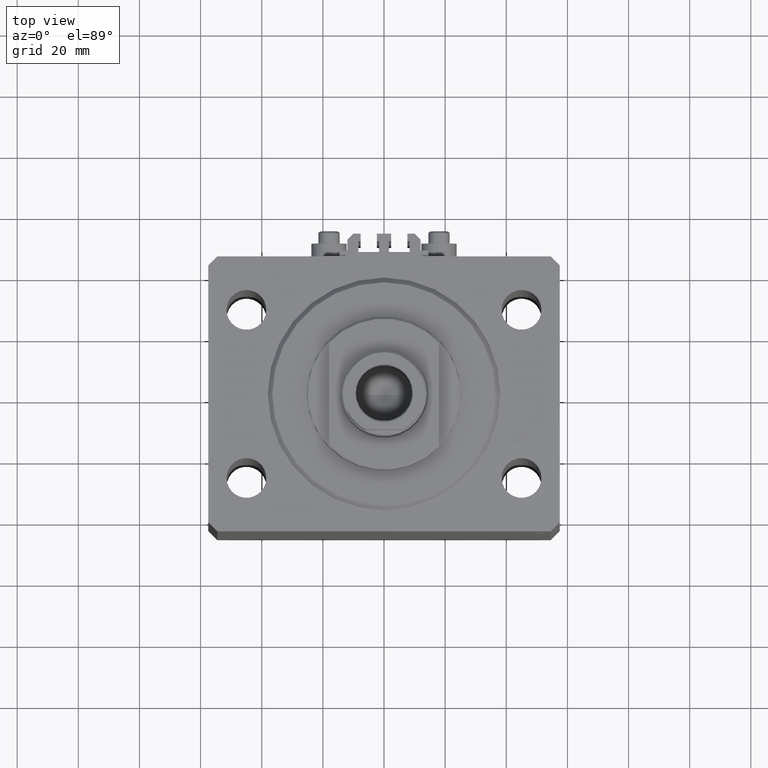
[diagram: clean part render]
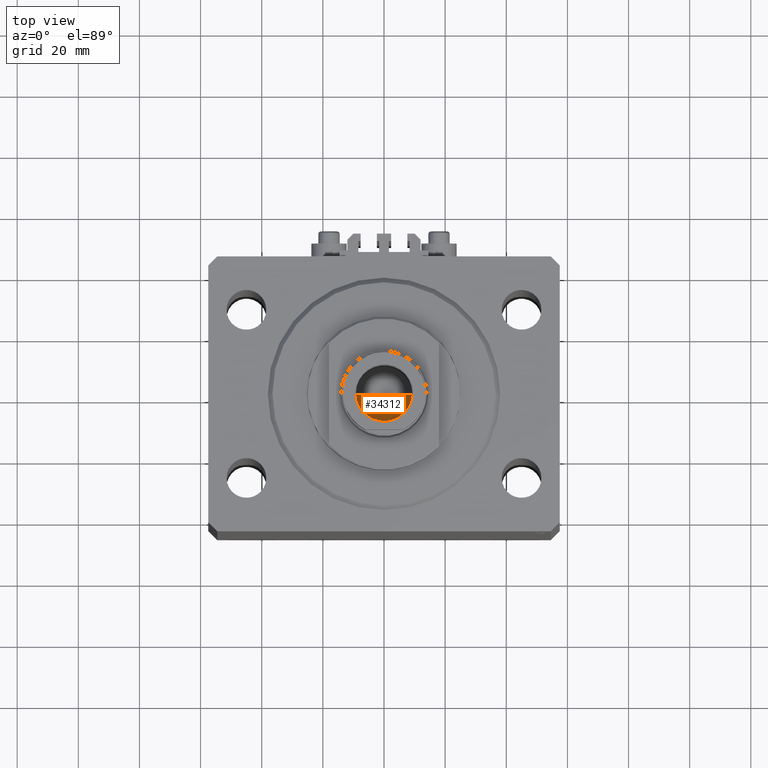
[diagram: same view with one face highlighted and labeled with its STEP entity id]
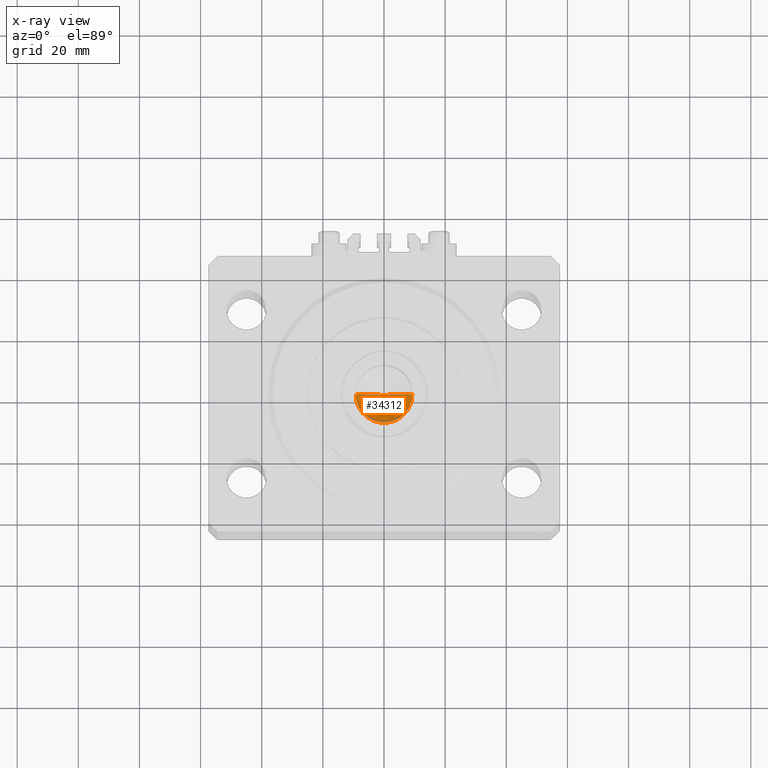
[diagram: x-ray of the same camera — body ghosted, the highlighted face saturated]
A machine part, top view. The second image highlights one B-rep face of the part: STEP entity #34312.
The next image is the same camera in x-ray: the body ghosted, the highlighted face saturated — about 8% of this face is hidden behind the body in this view.
In plain terms, the highlighted conical surface has half-angle 59 deg.
Its self-contained STEP definition (entity closure, byte-faithful):
#580 = FACE_OUTER_BOUND ( 'NONE', #9751, .T. ) ;
#3940 = CARTESIAN_POINT ( 'NONE',  ( 0.000000000000000000, 0.000000000000000000, 132.1000000000000227 ) ) ;
#5943 = VERTEX_POINT ( 'NONE', #6966 ) ;
#6696 = CARTESIAN_POINT ( 'NONE',  ( -9.249999999999994671, 1.132798289211300909E-15, 132.1000000000000227 ) ) ;
#6966 = CARTESIAN_POINT ( 'NONE',  ( 9.249999999999994671, 0.000000000000000000, 132.1000000000000227 ) ) ;
#7159 = CARTESIAN_POINT ( 'NONE',  ( -9.249999999999994671, 1.132798289211300909E-15, 132.1000000000000227 ) ) ;
#8796 = ORIENTED_EDGE ( 'NONE', *, *, #13483, .T. ) ;
#9751 = EDGE_LOOP ( 'NONE', ( #34711, #8796, #36185 ) ) ;
#10486 = VERTEX_POINT ( 'NONE', #31243 ) ;
#12905 = CONICAL_SURFACE ( 'NONE', #17486, 9.249999999999994671, 1.029744258676654534 ) ;
#13483 = EDGE_CURVE ( 'NONE', #10486, #30212, #43552, .T. ) ;
#14026 = EDGE_CURVE ( 'NONE', #30212, #5943, #33395, .T. ) ;
#14488 = DIRECTION ( 'NONE',  ( -0.000000000000000000, -0.000000000000000000, 1.000000000000000000 ) ) ;
#17486 = AXIS2_PLACEMENT_3D ( 'NONE', #3940, #14488, #37175 ) ;
#19936 = LINE ( 'NONE', #41941, #31285 ) ;
#29822 = CARTESIAN_POINT ( 'NONE',  ( 0.000000000000000000, 0.000000000000000000, 132.1000000000000227 ) ) ;
#30212 = VERTEX_POINT ( 'NONE', #6696 ) ;
#31116 = AXIS2_PLACEMENT_3D ( 'NONE', #29822, #44408, #41269 ) ;
#31243 = CARTESIAN_POINT ( 'NONE',  ( -1.046994375366439223E-14, 0.000000000000000000, 126.5420392739951012 ) ) ;
#31285 = VECTOR ( 'NONE', #31892, 1000.000000000000114 ) ;
#31892 = DIRECTION ( 'NONE',  ( 0.8571673007021122226, 0.000000000000000000, 0.5150380749100541555 ) ) ;
#33395 = CIRCLE ( 'NONE', #31116, 9.249999999999994671 ) ;
#34312 = ADVANCED_FACE ( 'NONE', ( #580 ), #12905, .F. ) ;
#34711 = ORIENTED_EDGE ( 'NONE', *, *, #45750, .F. ) ;
#36185 = ORIENTED_EDGE ( 'NONE', *, *, #14026, .T. ) ;
#37175 = DIRECTION ( 'NONE',  ( 1.000000000000000000, 0.000000000000000000, 0.000000000000000000 ) ) ;
#39231 = DIRECTION ( 'NONE',  ( -0.8571673007021122226, 1.049727191138618696E-16, 0.5150380749100541555 ) ) ;
#40955 = VECTOR ( 'NONE', #39231, 1000.000000000000114 ) ;
#41269 = DIRECTION ( 'NONE',  ( 1.000000000000000000, 0.000000000000000000, 0.000000000000000000 ) ) ;
#41941 = CARTESIAN_POINT ( 'NONE',  ( 9.249999999999994671, 0.000000000000000000, 132.1000000000000227 ) ) ;
#43552 = LINE ( 'NONE', #7159, #40955 ) ;
#44408 = DIRECTION ( 'NONE',  ( -0.000000000000000000, -0.000000000000000000, 1.000000000000000000 ) ) ;
#45750 = EDGE_CURVE ( 'NONE', #10486, #5943, #19936, .T. ) ;